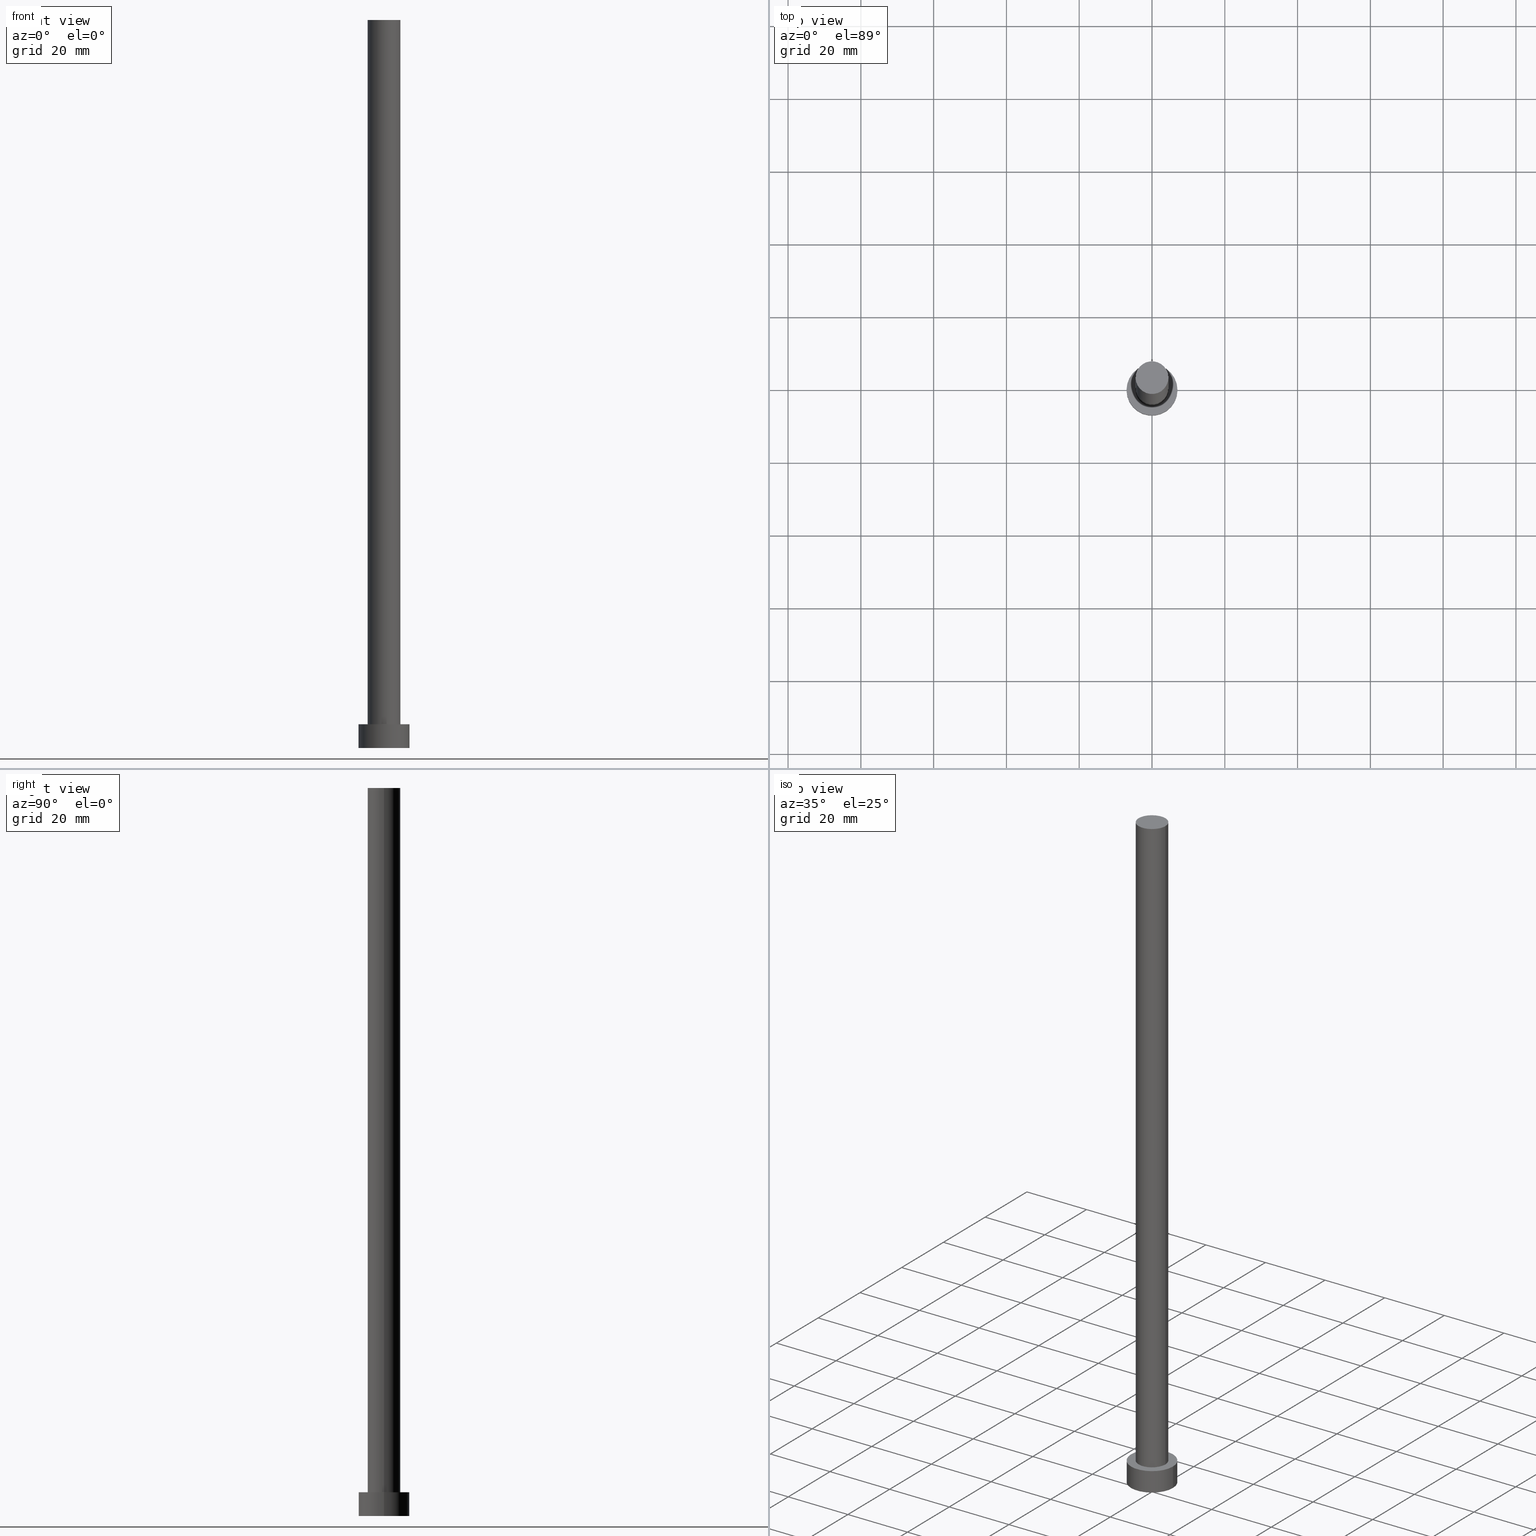
[diagram: canonical four-view strip — front | top / right | iso, engineering-drawing reading convention]
A machine part, canonical four-view strip (front | top / right | iso — engineering-drawing reading convention). The complete STEP part file that produces these views, byte-faithful:
ISO-10303-21;
HEADER;
FILE_DESCRIPTION (( 'STEP AP203' ),
    '1' );
FILE_NAME ('18c4.STEP',
    '2023-02-13T13:46:05',
    ( '' ),
    ( '' ),
    'SwSTEP 2.0',
    'SolidWorks 2019',
    '' );
FILE_SCHEMA (( 'CONFIG_CONTROL_DESIGN' ));
ENDSEC;

DATA;
#1 = DIRECTION ( 'NONE',  ( 0.000000000000000000, 0.000000000000000000, 1.000000000000000000 ) ) ;
#2 = PRODUCT ( '18c4', '18c4', '', ( #161 ) ) ;
#3 = PERSON_AND_ORGANIZATION ( #123, #174 ) ;
#4 = DIRECTION ( 'NONE',  ( -0.000000000000000000, -0.000000000000000000, -1.000000000000000000 ) ) ;
#5 = AXIS2_PLACEMENT_3D ( 'NONE', #7, #224, #133 ) ;
#6 = DIRECTION ( 'NONE',  ( -1.000000000000000000, 0.000000000000000000, 0.000000000000000000 ) ) ;
#7 = CARTESIAN_POINT ( 'NONE',  ( 0.000000000000000000, 0.000000000000000000, 0.000000000000000000 ) ) ;
#8 = EDGE_CURVE ( 'NONE', #164, #71, #173, .T. ) ;
#9 = CARTESIAN_POINT ( 'NONE',  ( 0.000000000000000000, 0.000000000000000000, 0.000000000000000000 ) ) ;
#10 = EDGE_LOOP ( 'NONE', ( #57, #140 ) ) ;
#11 = PRODUCT_RELATED_PRODUCT_CATEGORY ( 'detail', '', ( #2 ) ) ;
#12 = AXIS2_PLACEMENT_3D ( 'NONE', #64, #127, #193 ) ;
#13 = EDGE_LOOP ( 'NONE', ( #112, #22 ) ) ;
#14 = CC_DESIGN_DATE_AND_TIME_ASSIGNMENT ( #119, #103, ( #191 ) ) ;
#15 = PERSON_AND_ORGANIZATION_ROLE ( 'design_owner' ) ;
#16 = CLOSED_SHELL ( 'NONE', ( #60, #129, #92, #19, #31, #211, #188 ) ) ;
#17 = APPROVAL_STATUS ( 'not_yet_approved' ) ;
#18 = DATE_AND_TIME ( #207, #237 ) ;
#19 = ADVANCED_FACE ( 'NONE', ( #46, #196 ), #79, .T. ) ;
#20 = COORDINATED_UNIVERSAL_TIME_OFFSET ( 1, 0, .AHEAD. ) ;
#21 = PERSON_AND_ORGANIZATION_ROLE ( 'creator' ) ;
#22 = ORIENTED_EDGE ( 'NONE', *, *, #243, .F. ) ;
#23 = PERSON_AND_ORGANIZATION ( #123, #174 ) ;
#24 = MANIFOLD_SOLID_BREP ( 'P�idat vysunut�m3', #16 ) ;
#25 = CC_DESIGN_PERSON_AND_ORGANIZATION_ASSIGNMENT ( #253, #21, ( #56 ) ) ;
#26 = SECURITY_CLASSIFICATION_LEVEL ( 'unclassified' ) ;
#27 = CARTESIAN_POINT ( 'NONE',  ( 4.500000000000000888, 5.510910596163089556E-16, 6.500000000000000000 ) ) ;
#28 = APPLICATION_CONTEXT ( 'configuration controlled 3d designs of mechanical parts and assemblies' ) ;
#29 = CIRCLE ( 'NONE', #12, 4.500000000000000888 ) ;
#30 = FACE_OUTER_BOUND ( 'NONE', #131, .T. ) ;
#31 = ADVANCED_FACE ( 'NONE', ( #126 ), #213, .F. ) ;
#32 = DIRECTION ( 'NONE',  ( 0.000000000000000000, 0.000000000000000000, 1.000000000000000000 ) ) ;
#33 = CYLINDRICAL_SURFACE ( 'NONE', #214, 4.500000000000000888 ) ;
#34 = AXIS2_PLACEMENT_3D ( 'NONE', #241, #68, #88 ) ;
#35 = CARTESIAN_POINT ( 'NONE',  ( 0.000000000000000000, 0.000000000000000000, 0.000000000000000000 ) ) ;
#36 =( NAMED_UNIT ( * ) SI_UNIT ( $, .STERADIAN. ) SOLID_ANGLE_UNIT ( ) );
#37 = ORIENTED_EDGE ( 'NONE', *, *, #243, .T. ) ;
#38 = LOCAL_TIME ( 14, 46, 5.000000000000000000, #97 ) ;
#39 = ORIENTED_EDGE ( 'NONE', *, *, #137, .F. ) ;
#40 = CC_DESIGN_PERSON_AND_ORGANIZATION_ASSIGNMENT ( #3, #139, ( #56 ) ) ;
#41 = ORIENTED_EDGE ( 'NONE', *, *, #230, .T. ) ;
#42 = DATE_TIME_ROLE ( 'creation_date' ) ;
#43 = ORIENTED_EDGE ( 'NONE', *, *, #220, .F. ) ;
#44 = AXIS2_PLACEMENT_3D ( 'NONE', #236, #175, #104 ) ;
#45 = ORIENTED_EDGE ( 'NONE', *, *, #8, .T. ) ;
#46 = FACE_BOUND ( 'NONE', #13, .T. ) ;
#47 = CARTESIAN_POINT ( 'NONE',  ( 0.000000000000000000, 0.000000000000000000, 0.000000000000000000 ) ) ;
#48 = AXIS2_PLACEMENT_3D ( 'NONE', #47, #1, #106 ) ;
#49 = DIRECTION ( 'NONE',  ( 0.000000000000000000, 0.000000000000000000, 1.000000000000000000 ) ) ;
#50 = LINE ( 'NONE', #51, #159 ) ;
#51 = CARTESIAN_POINT ( 'NONE',  ( 4.500000000000000888, 5.510910596163089556E-16, 200.0000000000000000 ) ) ;
#52 = CIRCLE ( 'NONE', #186, 7.000000000000000000 ) ;
#53 = CARTESIAN_POINT ( 'NONE',  ( -7.000000000000000000, 0.000000000000000000, 0.000000000000000000 ) ) ;
#54 = CC_DESIGN_PERSON_AND_ORGANIZATION_ASSIGNMENT ( #89, #15, ( #2 ) ) ;
#55 = ORIENTED_EDGE ( 'NONE', *, *, #111, .F. ) ;
#56 = PRODUCT_DEFINITION_FORMATION_WITH_SPECIFIED_SOURCE ( 'LIBOVOLN�', '', #2, .NOT_KNOWN. ) ;
#57 = ORIENTED_EDGE ( 'NONE', *, *, #185, .T. ) ;
#58 =( NAMED_UNIT ( * ) PLANE_ANGLE_UNIT ( ) SI_UNIT ( $, .RADIAN. ) );
#59 = PERSON_AND_ORGANIZATION ( #123, #174 ) ;
#60 = ADVANCED_FACE ( 'NONE', ( #160 ), #33, .T. ) ;
#61 = CARTESIAN_POINT ( 'NONE',  ( 4.500000000000000888, 5.510910596163089556E-16, 200.0000000000000000 ) ) ;
#62 = APPROVAL_STATUS ( 'not_yet_approved' ) ;
#63 = APPROVAL_DATE_TIME ( #233, #145 ) ;
#64 = CARTESIAN_POINT ( 'NONE',  ( 0.000000000000000000, 0.000000000000000000, 6.500000000000000000 ) ) ;
#65 = DIRECTION ( 'NONE',  ( 0.000000000000000000, 0.000000000000000000, 1.000000000000000000 ) ) ;
#66 = EDGE_CURVE ( 'NONE', #209, #146, #50, .T. ) ;
#67 = DIRECTION ( 'NONE',  ( 0.000000000000000000, 0.000000000000000000, 1.000000000000000000 ) ) ;
#68 = DIRECTION ( 'NONE',  ( 0.000000000000000000, 0.000000000000000000, 1.000000000000000000 ) ) ;
#69 = FACE_OUTER_BOUND ( 'NONE', #73, .T. ) ;
#70 = AXIS2_PLACEMENT_3D ( 'NONE', #135, #184, #98 ) ;
#71 = VERTEX_POINT ( 'NONE', #181 ) ;
#72 = ORIENTED_EDGE ( 'NONE', *, *, #66, .T. ) ;
#73 = EDGE_LOOP ( 'NONE', ( #165, #172, #247, #163 ) ) ;
#74 = DIRECTION ( 'NONE',  ( 0.000000000000000000, 0.000000000000000000, 1.000000000000000000 ) ) ;
#75 = CALENDAR_DATE ( 2023, 13, 2 ) ;
#76 = LOCAL_TIME ( 14, 46, 5.000000000000000000, #20 ) ;
#77 = APPROVAL_ROLE ( '' ) ;
#78 =( GEOMETRIC_REPRESENTATION_CONTEXT ( 3 ) GLOBAL_UNCERTAINTY_ASSIGNED_CONTEXT ( ( #198 ) ) GLOBAL_UNIT_ASSIGNED_CONTEXT ( ( #95, #58, #36 ) ) REPRESENTATION_CONTEXT ( 'NONE', 'WORKASPACE' ) );
#79 = PLANE ( 'NONE',  #34 ) ;
#80 = AXIS2_PLACEMENT_3D ( 'NONE', #9, #128, #162 ) ;
#81 = EDGE_CURVE ( 'NONE', #71, #210, #219, .T. ) ;
#82 = CARTESIAN_POINT ( 'NONE',  ( -7.000000000000000000, 0.000000000000000000, 6.500000000000000000 ) ) ;
#83 = DIRECTION ( 'NONE',  ( -0.000000000000000000, -0.000000000000000000, -1.000000000000000000 ) ) ;
#84 = APPROVAL_PERSON_ORGANIZATION ( #108, #255, #249 ) ;
#85 = LOCAL_TIME ( 14, 46, 5.000000000000000000, #252 ) ;
#86 = FACE_OUTER_BOUND ( 'NONE', #10, .T. ) ;
#87 = CIRCLE ( 'NONE', #234, 4.500000000000000888 ) ;
#88 = DIRECTION ( 'NONE',  ( 1.000000000000000000, 0.000000000000000000, -0.000000000000000000 ) ) ;
#89 = PERSON_AND_ORGANIZATION ( #123, #174 ) ;
#90 = DIRECTION ( 'NONE',  ( 0.000000000000000000, 0.000000000000000000, 1.000000000000000000 ) ) ;
#91 = ORIENTED_EDGE ( 'NONE', *, *, #149, .T. ) ;
#92 = ADVANCED_FACE ( 'NONE', ( #212 ), #156, .T. ) ;
#93 = EDGE_LOOP ( 'NONE', ( #208, #187 ) ) ;
#94 = ORIENTED_EDGE ( 'NONE', *, *, #220, .T. ) ;
#95 =( LENGTH_UNIT ( ) NAMED_UNIT ( * ) SI_UNIT ( .MILLI., .METRE. ) );
#96 = VECTOR ( 'NONE', #141, 1000.000000000000000 ) ;
#97 = COORDINATED_UNIVERSAL_TIME_OFFSET ( 1, 0, .AHEAD. ) ;
#98 = DIRECTION ( 'NONE',  ( -1.000000000000000000, 0.000000000000000000, 0.000000000000000000 ) ) ;
#99 = CC_DESIGN_APPROVAL ( #255, ( #194 ) ) ;
#100 = PERSON_AND_ORGANIZATION ( #123, #174 ) ;
#101 = LINE ( 'NONE', #82, #96 ) ;
#102 = CIRCLE ( 'NONE', #80, 7.000000000000000000 ) ;
#103 = DATE_TIME_ROLE ( 'classification_date' ) ;
#104 = DIRECTION ( 'NONE',  ( 1.000000000000000000, 0.000000000000000000, 0.000000000000000000 ) ) ;
#105 = DIRECTION ( 'NONE',  ( 1.000000000000000000, 0.000000000000000000, 0.000000000000000000 ) ) ;
#106 = DIRECTION ( 'NONE',  ( 1.000000000000000000, 0.000000000000000000, -0.000000000000000000 ) ) ;
#107 = DESIGN_CONTEXT ( 'detailed design', #232, 'design' ) ;
#108 = PERSON_AND_ORGANIZATION ( #123, #174 ) ;
#109 = ORIENTED_EDGE ( 'NONE', *, *, #149, .F. ) ;
#110 = AXIS2_PLACEMENT_3D ( 'NONE', #225, #74, #228 ) ;
#111 = EDGE_CURVE ( 'NONE', #117, #206, #122, .T. ) ;
#112 = ORIENTED_EDGE ( 'NONE', *, *, #130, .F. ) ;
#113 = CARTESIAN_POINT ( 'NONE',  ( -7.000000000000000000, 0.000000000000000000, 6.500000000000000000 ) ) ;
#114 = PERSON_AND_ORGANIZATION ( #123, #174 ) ;
#115 = COORDINATED_UNIVERSAL_TIME_OFFSET ( 1, 0, .AHEAD. ) ;
#116 = CC_DESIGN_SECURITY_CLASSIFICATION ( #191, ( #56 ) ) ;
#117 = VERTEX_POINT ( 'NONE', #180 ) ;
#118 = AXIS2_PLACEMENT_3D ( 'NONE', #195, #32, #105 ) ;
#119 = DATE_AND_TIME ( #121, #85 ) ;
#120 = DIRECTION ( 'NONE',  ( -0.000000000000000000, -0.000000000000000000, -1.000000000000000000 ) ) ;
#121 = CALENDAR_DATE ( 2023, 13, 2 ) ;
#122 = LINE ( 'NONE', #235, #124 ) ;
#123 = PERSON ( 'NEUR�EN�', 'NEUR�EN�', 'NEUR�EN�', ('NEUR�EN�'), ('NEUR�EN�'), ('NEUR�EN�') ) ;
#124 = VECTOR ( 'NONE', #192, 1000.000000000000000 ) ;
#125 = DIRECTION ( 'NONE',  ( 1.000000000000000000, 0.000000000000000000, 0.000000000000000000 ) ) ;
#126 = FACE_OUTER_BOUND ( 'NONE', #93, .T. ) ;
#127 = DIRECTION ( 'NONE',  ( 0.000000000000000000, 0.000000000000000000, 1.000000000000000000 ) ) ;
#128 = DIRECTION ( 'NONE',  ( 0.000000000000000000, 0.000000000000000000, 1.000000000000000000 ) ) ;
#129 = ADVANCED_FACE ( 'NONE', ( #30 ), #217, .T. ) ;
#130 = EDGE_CURVE ( 'NONE', #206, #146, #29, .T. ) ;
#131 = EDGE_LOOP ( 'NONE', ( #39, #45, #246, #109 ) ) ;
#132 = VECTOR ( 'NONE', #176, 1000.000000000000000 ) ;
#133 = DIRECTION ( 'NONE',  ( 1.000000000000000000, 0.000000000000000000, 0.000000000000000000 ) ) ;
#134 = COORDINATED_UNIVERSAL_TIME_OFFSET ( 1, 0, .AHEAD. ) ;
#135 = CARTESIAN_POINT ( 'NONE',  ( 0.000000000000000000, 0.000000000000000000, 200.0000000000000000 ) ) ;
#136 = CIRCLE ( 'NONE', #110, 4.500000000000000888 ) ;
#137 = EDGE_CURVE ( 'NONE', #164, #202, #177, .T. ) ;
#138 = APPLICATION_PROTOCOL_DEFINITION ( 'international standard', 'config_control_design', 1994, #28 ) ;
#139 = PERSON_AND_ORGANIZATION_ROLE ( 'design_supplier' ) ;
#140 = ORIENTED_EDGE ( 'NONE', *, *, #169, .T. ) ;
#141 = DIRECTION ( 'NONE',  ( -0.000000000000000000, -0.000000000000000000, -1.000000000000000000 ) ) ;
#142 = CARTESIAN_POINT ( 'NONE',  ( 0.000000000000000000, 0.000000000000000000, 200.0000000000000000 ) ) ;
#143 = DIRECTION ( 'NONE',  ( 1.000000000000000000, 0.000000000000000000, -0.000000000000000000 ) ) ;
#144 = DIRECTION ( 'NONE',  ( -0.000000000000000000, -0.000000000000000000, -1.000000000000000000 ) ) ;
#145 = APPROVAL ( #62, 'NEUR�EN�' ) ;
#146 = VERTEX_POINT ( 'NONE', #27 ) ;
#147 = DATE_AND_TIME ( #75, #204 ) ;
#148 = CC_DESIGN_APPROVAL ( #200, ( #56 ) ) ;
#149 = EDGE_CURVE ( 'NONE', #202, #210, #101, .T. ) ;
#150 = CARTESIAN_POINT ( 'NONE',  ( 0.000000000000000000, 0.000000000000000000, 6.500000000000000000 ) ) ;
#151 = AXIS2_PLACEMENT_3D ( 'NONE', #199, #144, #6 ) ;
#152 = APPROVAL_DATE_TIME ( #250, #200 ) ;
#153 = DIRECTION ( 'NONE',  ( -1.000000000000000000, 0.000000000000000000, 0.000000000000000000 ) ) ;
#154 = AXIS2_PLACEMENT_3D ( 'NONE', #239, #67, #143 ) ;
#155 = CALENDAR_DATE ( 2023, 13, 2 ) ;
#156 = CYLINDRICAL_SURFACE ( 'NONE', #201, 7.000000000000000000 ) ;
#157 = CARTESIAN_POINT ( 'NONE',  ( 7.000000000000000000, 8.572527594031471218E-16, 6.500000000000000000 ) ) ;
#158 = PLANE ( 'NONE',  #154 ) ;
#159 = VECTOR ( 'NONE', #83, 1000.000000000000000 ) ;
#160 = FACE_OUTER_BOUND ( 'NONE', #218, .T. ) ;
#161 = MECHANICAL_CONTEXT ( 'NONE', #28, 'mechanical' ) ;
#162 = DIRECTION ( 'NONE',  ( 1.000000000000000000, 0.000000000000000000, 0.000000000000000000 ) ) ;
#163 = ORIENTED_EDGE ( 'NONE', *, *, #130, .T. ) ;
#164 = VERTEX_POINT ( 'NONE', #157 ) ;
#165 = ORIENTED_EDGE ( 'NONE', *, *, #66, .F. ) ;
#166 = CC_DESIGN_DATE_AND_TIME_ASSIGNMENT ( #18, #42, ( #194 ) ) ;
#167 = APPROVAL_STATUS ( 'not_yet_approved' ) ;
#168 = AXIS2_PLACEMENT_3D ( 'NONE', #35, #65, #238 ) ;
#169 = EDGE_CURVE ( 'NONE', #209, #117, #87, .T. ) ;
#170 = CALENDAR_DATE ( 2023, 13, 2 ) ;
#171 = APPROVAL_ROLE ( '' ) ;
#172 = ORIENTED_EDGE ( 'NONE', *, *, #185, .F. ) ;
#173 = LINE ( 'NONE', #215, #132 ) ;
#174 = ORGANIZATION ( 'NEUR�EN�', 'NEUR�EN�', '' ) ;
#175 = DIRECTION ( 'NONE',  ( 0.000000000000000000, 0.000000000000000000, 1.000000000000000000 ) ) ;
#176 = DIRECTION ( 'NONE',  ( -0.000000000000000000, -0.000000000000000000, -1.000000000000000000 ) ) ;
#177 = CIRCLE ( 'NONE', #44, 7.000000000000000000 ) ;
#178 = PRODUCT_DEFINITION_SHAPE ( 'NONE', 'NONE',  #194 ) ;
#179 = CARTESIAN_POINT ( 'NONE',  ( 0.000000000000000000, 0.000000000000000000, 200.0000000000000000 ) ) ;
#180 = CARTESIAN_POINT ( 'NONE',  ( -4.500000000000000888, 0.000000000000000000, 200.0000000000000000 ) ) ;
#181 = CARTESIAN_POINT ( 'NONE',  ( 7.000000000000000000, 8.572527594031471218E-16, 0.000000000000000000 ) ) ;
#182 = DIRECTION ( 'NONE',  ( 1.000000000000000000, 0.000000000000000000, 0.000000000000000000 ) ) ;
#183 = CC_DESIGN_APPROVAL ( #145, ( #191 ) ) ;
#184 = DIRECTION ( 'NONE',  ( -0.000000000000000000, -0.000000000000000000, -1.000000000000000000 ) ) ;
#185 = EDGE_CURVE ( 'NONE', #117, #209, #223, .T. ) ;
#186 = AXIS2_PLACEMENT_3D ( 'NONE', #150, #90, #182 ) ;
#187 = ORIENTED_EDGE ( 'NONE', *, *, #81, .F. ) ;
#188 = ADVANCED_FACE ( 'NONE', ( #86 ), #158, .T. ) ;
#189 = PERSON_AND_ORGANIZATION_ROLE ( 'creator' ) ;
#190 = SHAPE_DEFINITION_REPRESENTATION ( #178, #221 ) ;
#191 = SECURITY_CLASSIFICATION ( '', '', #26 ) ;
#192 = DIRECTION ( 'NONE',  ( -0.000000000000000000, -0.000000000000000000, -1.000000000000000000 ) ) ;
#193 = DIRECTION ( 'NONE',  ( 1.000000000000000000, 0.000000000000000000, 0.000000000000000000 ) ) ;
#194 = PRODUCT_DEFINITION ( 'NEZN�M�', '', #56, #107 ) ;
#195 = CARTESIAN_POINT ( 'NONE',  ( 0.000000000000000000, 0.000000000000000000, 200.0000000000000000 ) ) ;
#196 = FACE_OUTER_BOUND ( 'NONE', #245, .T. ) ;
#197 = APPROVAL_PERSON_ORGANIZATION ( #114, #200, #171 ) ;
#198 = UNCERTAINTY_MEASURE_WITH_UNIT (LENGTH_MEASURE( 1.000000000000000082E-05 ), #95, 'distance_accuracy_value', 'NONE');
#199 = CARTESIAN_POINT ( 'NONE',  ( 0.000000000000000000, 0.000000000000000000, 6.500000000000000000 ) ) ;
#200 = APPROVAL ( #17, 'NEUR�EN�' ) ;
#201 = AXIS2_PLACEMENT_3D ( 'NONE', #254, #120, #153 ) ;
#202 = VERTEX_POINT ( 'NONE', #113 ) ;
#203 = EDGE_LOOP ( 'NONE', ( #222, #43, #91, #41 ) ) ;
#204 = LOCAL_TIME ( 14, 46, 5.000000000000000000, #115 ) ;
#205 = ORIENTED_EDGE ( 'NONE', *, *, #137, .T. ) ;
#206 = VERTEX_POINT ( 'NONE', #244 ) ;
#207 = CALENDAR_DATE ( 2023, 13, 2 ) ;
#208 = ORIENTED_EDGE ( 'NONE', *, *, #230, .F. ) ;
#209 = VERTEX_POINT ( 'NONE', #61 ) ;
#210 = VERTEX_POINT ( 'NONE', #53 ) ;
#211 = ADVANCED_FACE ( 'NONE', ( #69 ), #229, .T. ) ;
#212 = FACE_OUTER_BOUND ( 'NONE', #203, .T. ) ;
#213 = PLANE ( 'NONE',  #48 ) ;
#214 = AXIS2_PLACEMENT_3D ( 'NONE', #179, #4, #216 ) ;
#215 = CARTESIAN_POINT ( 'NONE',  ( 7.000000000000000000, 8.572527594031471218E-16, 6.500000000000000000 ) ) ;
#216 = DIRECTION ( 'NONE',  ( -1.000000000000000000, 0.000000000000000000, 0.000000000000000000 ) ) ;
#217 = CYLINDRICAL_SURFACE ( 'NONE', #151, 7.000000000000000000 ) ;
#218 = EDGE_LOOP ( 'NONE', ( #226, #72, #37, #55 ) ) ;
#219 = CIRCLE ( 'NONE', #168, 7.000000000000000000 ) ;
#220 = EDGE_CURVE ( 'NONE', #202, #164, #52, .T. ) ;
#221 = ADVANCED_BREP_SHAPE_REPRESENTATION ( '18c4', ( #24, #5 ), #78 ) ;
#222 = ORIENTED_EDGE ( 'NONE', *, *, #8, .F. ) ;
#223 = CIRCLE ( 'NONE', #118, 4.500000000000000888 ) ;
#224 = DIRECTION ( 'NONE',  ( 0.000000000000000000, 0.000000000000000000, 1.000000000000000000 ) ) ;
#225 = CARTESIAN_POINT ( 'NONE',  ( 0.000000000000000000, 0.000000000000000000, 6.500000000000000000 ) ) ;
#226 = ORIENTED_EDGE ( 'NONE', *, *, #169, .F. ) ;
#227 = APPROVAL_PERSON_ORGANIZATION ( #23, #145, #77 ) ;
#228 = DIRECTION ( 'NONE',  ( 1.000000000000000000, 0.000000000000000000, 0.000000000000000000 ) ) ;
#229 = CYLINDRICAL_SURFACE ( 'NONE', #70, 4.500000000000000888 ) ;
#230 = EDGE_CURVE ( 'NONE', #210, #71, #102, .T. ) ;
#231 = PERSON_AND_ORGANIZATION_ROLE ( 'classification_officer' ) ;
#232 = APPLICATION_CONTEXT ( 'configuration controlled 3d designs of mechanical parts and assemblies' ) ;
#233 = DATE_AND_TIME ( #155, #76 ) ;
#234 = AXIS2_PLACEMENT_3D ( 'NONE', #142, #49, #125 ) ;
#235 = CARTESIAN_POINT ( 'NONE',  ( -4.500000000000000888, 0.000000000000000000, 200.0000000000000000 ) ) ;
#236 = CARTESIAN_POINT ( 'NONE',  ( 0.000000000000000000, 0.000000000000000000, 6.500000000000000000 ) ) ;
#237 = LOCAL_TIME ( 14, 46, 5.000000000000000000, #134 ) ;
#238 = DIRECTION ( 'NONE',  ( 1.000000000000000000, 0.000000000000000000, 0.000000000000000000 ) ) ;
#239 = CARTESIAN_POINT ( 'NONE',  ( 0.000000000000000000, 0.000000000000000000, 200.0000000000000000 ) ) ;
#240 = CC_DESIGN_PERSON_AND_ORGANIZATION_ASSIGNMENT ( #100, #231, ( #191 ) ) ;
#241 = CARTESIAN_POINT ( 'NONE',  ( 0.000000000000000000, 0.000000000000000000, 6.500000000000000000 ) ) ;
#242 = APPROVAL_DATE_TIME ( #147, #255 ) ;
#243 = EDGE_CURVE ( 'NONE', #146, #206, #136, .T. ) ;
#244 = CARTESIAN_POINT ( 'NONE',  ( -4.500000000000000888, 0.000000000000000000, 6.500000000000000000 ) ) ;
#245 = EDGE_LOOP ( 'NONE', ( #94, #205 ) ) ;
#246 = ORIENTED_EDGE ( 'NONE', *, *, #81, .T. ) ;
#247 = ORIENTED_EDGE ( 'NONE', *, *, #111, .T. ) ;
#248 = CC_DESIGN_PERSON_AND_ORGANIZATION_ASSIGNMENT ( #59, #189, ( #194 ) ) ;
#249 = APPROVAL_ROLE ( '' ) ;
#250 = DATE_AND_TIME ( #170, #38 ) ;
#251 = APPLICATION_PROTOCOL_DEFINITION ( 'international standard', 'config_control_design', 1994, #232 ) ;
#252 = COORDINATED_UNIVERSAL_TIME_OFFSET ( 1, 0, .AHEAD. ) ;
#253 = PERSON_AND_ORGANIZATION ( #123, #174 ) ;
#254 = CARTESIAN_POINT ( 'NONE',  ( 0.000000000000000000, 0.000000000000000000, 6.500000000000000000 ) ) ;
#255 = APPROVAL ( #167, 'NEUR�EN�' ) ;
ENDSEC;
END-ISO-10303-21;
